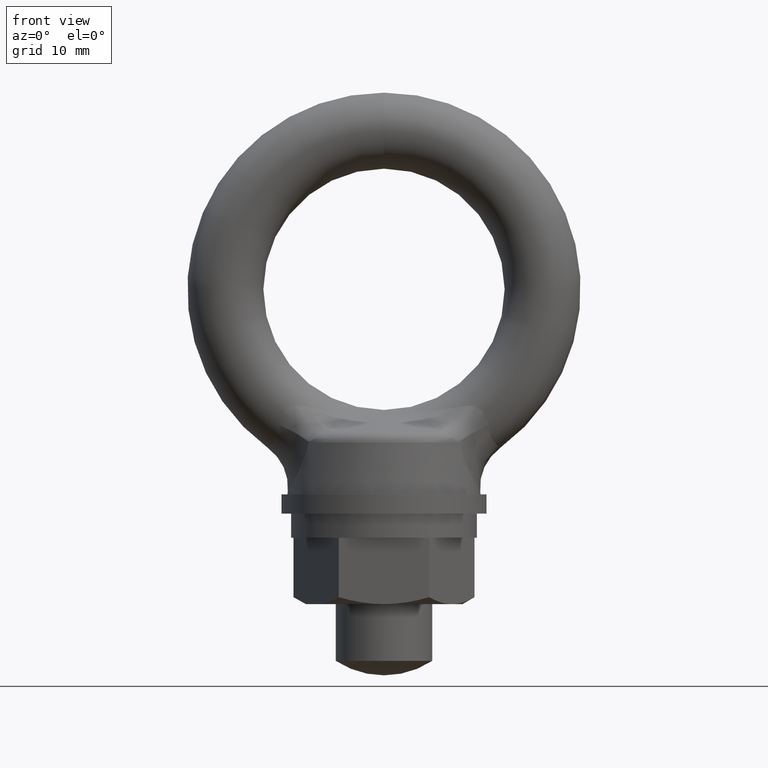
[diagram: clean part render]
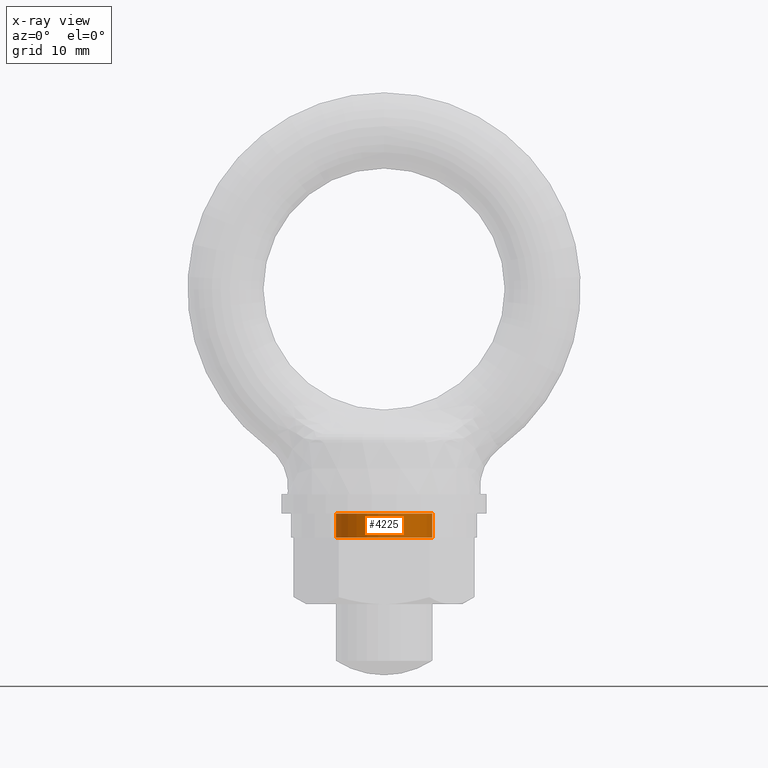
[diagram: x-ray — body ghosted, one internal face saturated and labeled with its STEP entity id]
A machine part, front view, then the same camera in x-ray: the body is ghosted and one INTERNAL B-rep face — a face not visible from any outside direction — is saturated and labeled: STEP entity #4225.
In plain terms, the highlighted cylindrical surface (partial cylindrical patch) has radius 4 mm, axis along (0, 0, -1).
Its self-contained STEP definition (entity closure, byte-faithful):
#917 = DIRECTION ( 'NONE',  ( 0.0000000000000000000, 0.0000000000000000000, -1.000000000000000000 ) ) ;
#918 = VECTOR ( 'NONE', #917, 1000.000000000000000 ) ;
#919 = CARTESIAN_POINT ( 'NONE',  ( -4.000000000000000000, 0.0000000000000000000, 979.4000009999999700 ) ) ;
#920 = LINE ( 'NONE', #919, #918 ) ;
#4225 = ADVANCED_FACE ( 'NONE', ( #5366 ), #5365, .F. ) ;
#4226 = EDGE_LOOP ( 'NONE', ( #4227, #4352, #4279, #4282 ) ) ;
#4227 = ORIENTED_EDGE ( 'NONE', *, *, #4228, .F. ) ;
#4228 = EDGE_CURVE ( 'NONE', #4229, #4230, #5359, .T. ) ;
#4229 = VERTEX_POINT ( 'NONE', #5355 ) ;
#4230 = VERTEX_POINT ( 'NONE', #5354 ) ;
#4279 = ORIENTED_EDGE ( 'NONE', *, *, #4280, .T. ) ;
#4280 = EDGE_CURVE ( 'NONE', #4354, #4281, #5459, .T. ) ;
#4281 = VERTEX_POINT ( 'NONE', #5454 ) ;
#4282 = ORIENTED_EDGE ( 'NONE', *, *, #4320, .F. ) ;
#4320 = EDGE_CURVE ( 'NONE', #4230, #4281, #920, .T. ) ;
#4352 = ORIENTED_EDGE ( 'NONE', *, *, #4353, .T. ) ;
#4353 = EDGE_CURVE ( 'NONE', #4229, #4354, #6860, .T. ) ;
#4354 = VERTEX_POINT ( 'NONE', #6821 ) ;
#5354 = CARTESIAN_POINT ( 'NONE',  ( -4.000000000000000000, 0.0000000000000000000, -18.59999900000000000 ) ) ;
#5355 = CARTESIAN_POINT ( 'NONE',  ( 4.000000000000000000, 4.898425415289509000E-016, -18.59999900000000000 ) ) ;
#5356 = DIRECTION ( 'NONE',  ( 1.000000000000000000, 0.0000000000000000000, 0.0000000000000000000 ) ) ;
#5357 = DIRECTION ( 'NONE',  ( 0.0000000000000000000, 0.0000000000000000000, -1.000000000000000000 ) ) ;
#5358 = AXIS2_PLACEMENT_3D ( 'NONE', #5363, #5357, #5356 ) ;
#5359 = CIRCLE ( 'NONE', #5358, 4.000000000000000000 ) ;
#5360 = DIRECTION ( 'NONE',  ( -1.000000000000000000, 0.0000000000000000000, 0.0000000000000000000 ) ) ;
#5361 = DIRECTION ( 'NONE',  ( 0.0000000000000000000, 0.0000000000000000000, -1.000000000000000000 ) ) ;
#5362 = AXIS2_PLACEMENT_3D ( 'NONE', #5364, #5361, #5360 ) ;
#5363 = CARTESIAN_POINT ( 'NONE',  ( 0.0000000000000000000, 0.0000000000000000000, -18.59999900000000000 ) ) ;
#5364 = CARTESIAN_POINT ( 'NONE',  ( 0.0000000000000000000, 0.0000000000000000000, 979.4000009999999700 ) ) ;
#5365 = CYLINDRICAL_SURFACE ( 'NONE', #5362, 4.000000000000000000 ) ;
#5366 = FACE_OUTER_BOUND ( 'NONE', #4226, .T. ) ;
#5454 = CARTESIAN_POINT ( 'NONE',  ( -4.000000000000000000, 0.0000000000000000000, -20.59999900000000000 ) ) ;
#5455 = DIRECTION ( 'NONE',  ( 1.000000000000000000, 0.0000000000000000000, 0.0000000000000000000 ) ) ;
#5456 = DIRECTION ( 'NONE',  ( 0.0000000000000000000, 0.0000000000000000000, -1.000000000000000000 ) ) ;
#5457 = CARTESIAN_POINT ( 'NONE',  ( 0.0000000000000000000, 0.0000000000000000000, -20.59999900000000000 ) ) ;
#5458 = AXIS2_PLACEMENT_3D ( 'NONE', #5457, #5456, #5455 ) ;
#5459 = CIRCLE ( 'NONE', #5458, 4.000000000000000000 ) ;
#6821 = CARTESIAN_POINT ( 'NONE',  ( 4.000000000000000000, 4.898425415289509000E-016, -20.59999900000000000 ) ) ;
#6822 = DIRECTION ( 'NONE',  ( 0.0000000000000000000, 0.0000000000000000000, -1.000000000000000000 ) ) ;
#6823 = VECTOR ( 'NONE', #6822, 1000.000000000000000 ) ;
#6824 = CARTESIAN_POINT ( 'NONE',  ( 4.000000000000000000, 4.898425415289509000E-016, 979.4000009999999700 ) ) ;
#6860 = LINE ( 'NONE', #6824, #6823 ) ;